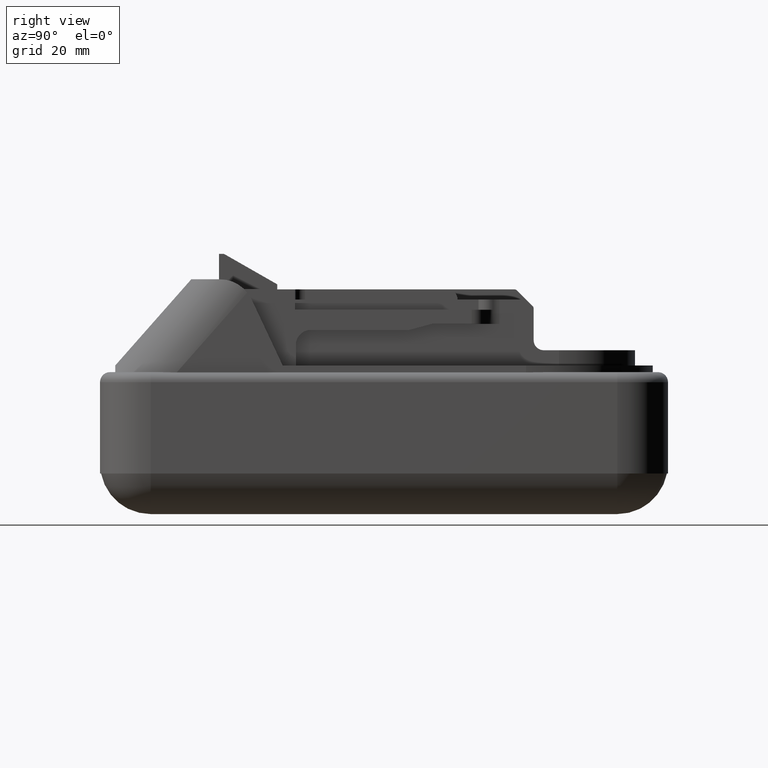
[diagram: clean part render]
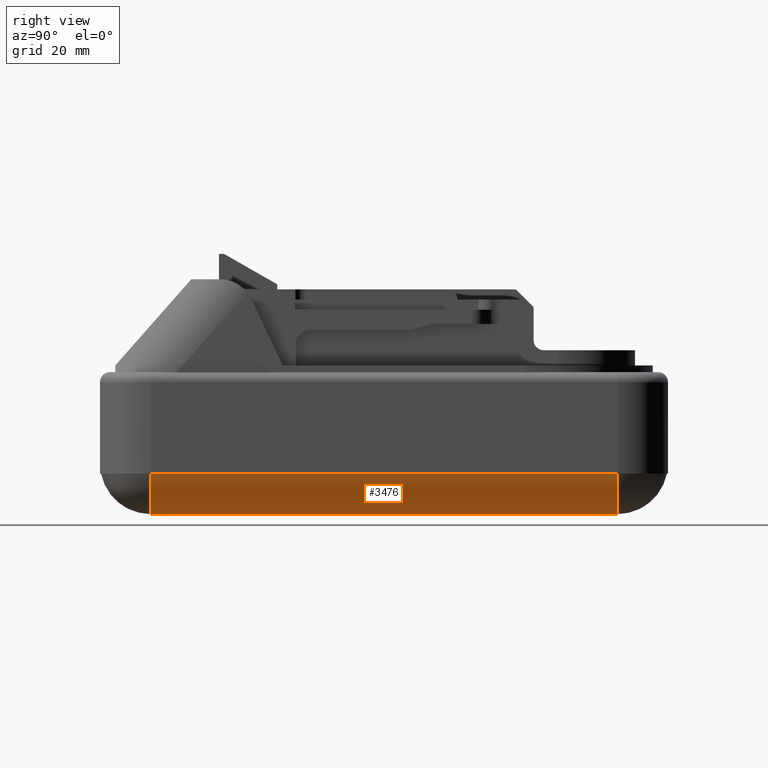
[diagram: same view with one face highlighted and labeled with its STEP entity id]
A machine part, right view. The second image highlights one B-rep face of the part: STEP entity #3476.
In plain terms, the highlighted cylindrical surface (partial cylindrical patch) has radius 10 mm, axis along (0, 1, 0).
Its self-contained STEP definition (entity closure, byte-faithful):
#171=LINE('',#5030,#575);
#172=LINE('',#5033,#576);
#575=VECTOR('',#4004,10.);
#576=VECTOR('',#4007,1.);
#979=CYLINDRICAL_SURFACE('',#3685,10.);
#1033=FACE_OUTER_BOUND('',#1225,.T.);
#1225=EDGE_LOOP('',(#2416,#2417,#2418,#2419));
#1425=CIRCLE('',#3683,10.);
#1427=CIRCLE('',#3686,10.);
#1537=VERTEX_POINT('',#5022);
#1539=VERTEX_POINT('',#5025);
#1540=VERTEX_POINT('',#5029);
#1541=VERTEX_POINT('',#5031);
#1885=EDGE_CURVE('',#1537,#1539,#1425,.T.);
#1887=EDGE_CURVE('',#1540,#1537,#171,.T.);
#1888=EDGE_CURVE('',#1540,#1541,#1427,.T.);
#1889=EDGE_CURVE('',#1541,#1539,#172,.T.);
#2416=ORIENTED_EDGE('',*,*,#1887,.F.);
#2417=ORIENTED_EDGE('',*,*,#1888,.T.);
#2418=ORIENTED_EDGE('',*,*,#1889,.T.);
#2419=ORIENTED_EDGE('',*,*,#1885,.F.);
#3476=ADVANCED_FACE('',(#1033),#979,.T.);
#3683=AXIS2_PLACEMENT_3D('',#5026,#3998,#3999);
#3685=AXIS2_PLACEMENT_3D('',#5028,#4002,#4003);
#3686=AXIS2_PLACEMENT_3D('',#5032,#4005,#4006);
#3998=DIRECTION('center_axis',(0.,1.,0.));
#3999=DIRECTION('ref_axis',(0.,0.,-1.));
#4002=DIRECTION('center_axis',(0.,1.,0.));
#4003=DIRECTION('ref_axis',(1.,0.,1.83697019872E-16));
#4004=DIRECTION('',(0.,1.,0.));
#4005=DIRECTION('center_axis',(0.,1.,0.));
#4006=DIRECTION('ref_axis',(0.,0.,-1.));
#4007=DIRECTION('',(0.,1.,0.));
#5022=CARTESIAN_POINT('',(37.2979589711327,205.,8.));
#5025=CARTESIAN_POINT('',(27.5,205.,0.));
#5026=CARTESIAN_POINT('Origin',(27.5,205.,10.));
#5028=CARTESIAN_POINT('Origin',(27.5,159.,10.));
#5029=CARTESIAN_POINT('',(37.2979589711327,113.,8.));
#5030=CARTESIAN_POINT('',(37.2979589711327,159.,8.));
#5031=CARTESIAN_POINT('',(27.5,113.,0.));
#5032=CARTESIAN_POINT('Origin',(27.5,113.,10.));
#5033=CARTESIAN_POINT('',(27.5,159.,0.));